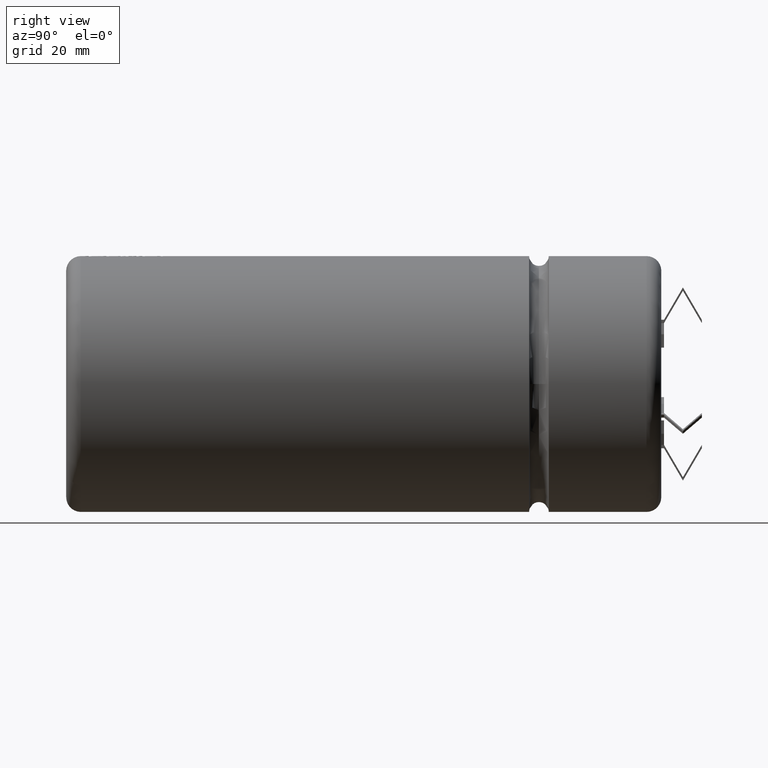
[diagram: clean part render]
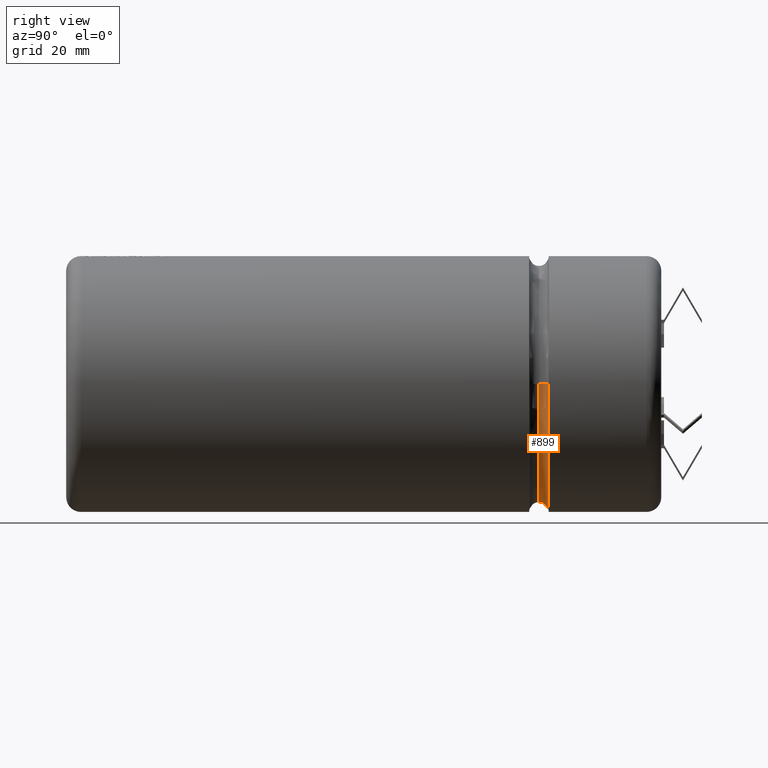
[diagram: same view with one face highlighted and labeled with its STEP entity id]
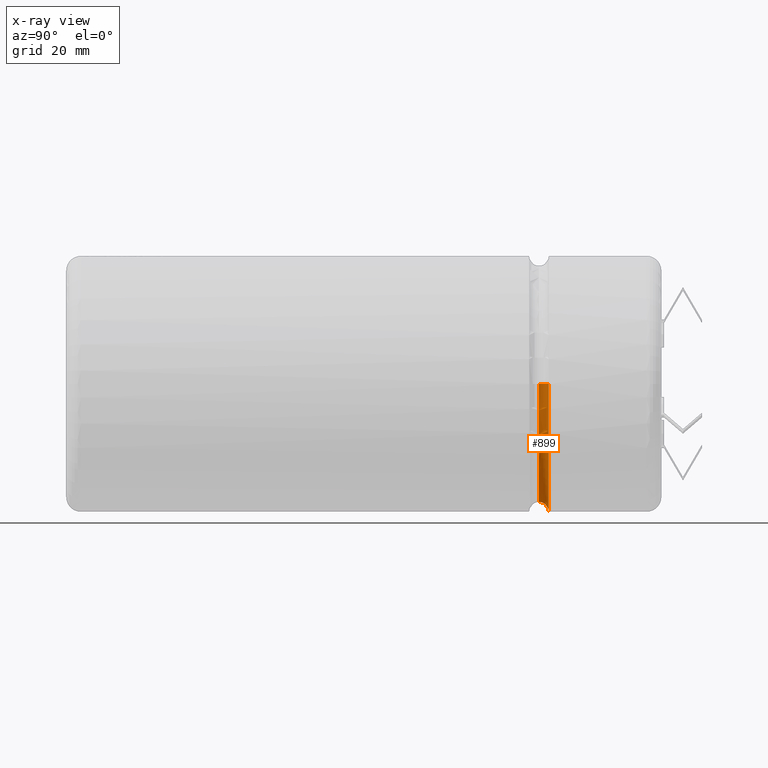
[diagram: x-ray of the same camera — body ghosted, the highlighted face saturated]
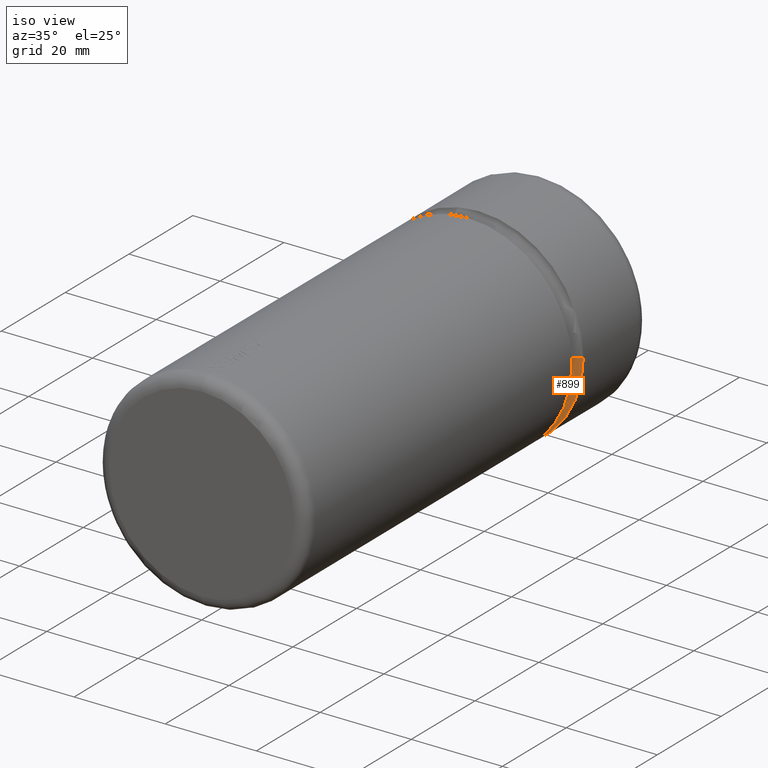
[diagram: same view with one face highlighted and labeled with its STEP entity id]
A machine part, right view. The second image highlights one B-rep face of the part: STEP entity #899.
The next image is the same camera in x-ray: the body ghosted, the highlighted face saturated — about 0% of this face is hidden behind the body in this view.
A second angle (iso view) of the same face is appended — the face is thin or edge-on in the first view.
In plain terms, the highlighted toroidal blend (fillet) surface has major radius 23 mm and minor (blend) radius 1.7692 mm.
Its self-contained STEP definition (entity closure, byte-faithful):
#20 = CIRCLE ( 'NONE', #3860, 23.00000000000000000 ) ;
#42 = VERTEX_POINT ( 'NONE', #725 ) ;
#192 = CIRCLE ( 'NONE', #2516, 21.23083999999999700 ) ;
#286 = DIRECTION ( 'NONE',  ( 1.000000000000000000, 0.0000000000000000000, 1.224646799147352200E-016 ) ) ;
#357 = CARTESIAN_POINT ( 'NONE',  ( 2.739225679850495200E-034, 84.99999999999998600, 0.0000000000000000000 ) ) ;
#458 = CARTESIAN_POINT ( 'NONE',  ( -23.00000000000000400, 84.99999999999998600, 0.0000000000000000000 ) ) ;
#555 = AXIS2_PLACEMENT_3D ( 'NONE', #458, #3009, #3365 ) ;
#602 = CIRCLE ( 'NONE', #555, 1.769160000000005600 ) ;
#720 = DIRECTION ( 'NONE',  ( -1.000000000000000000, 0.0000000000000000000, 0.0000000000000000000 ) ) ;
#725 = CARTESIAN_POINT ( 'NONE',  ( -23.00000000000000000, 86.76915999999999900, 0.0000000000000000000 ) ) ;
#726 = EDGE_CURVE ( 'NONE', #42, #2666, #602, .T. ) ;
#793 = CARTESIAN_POINT ( 'NONE',  ( -21.23083999999999700, 84.99999999999998600, 0.0000000000000000000 ) ) ;
#899 = ADVANCED_FACE ( 'NONE', ( #2255 ), #1453, .F. ) ;
#970 = DIRECTION ( 'NONE',  ( -1.264299165142146600E-018, 1.000000000000000000, -0.0000000000000000000 ) ) ;
#1005 = DIRECTION ( 'NONE',  ( -1.000000000000000000, -1.264299165142146600E-018, 0.0000000000000000000 ) ) ;
#1099 = ORIENTED_EDGE ( 'NONE', *, *, #3397, .T. ) ;
#1257 = EDGE_CURVE ( 'NONE', #1937, #2666, #192, .T. ) ;
#1453 = TOROIDAL_SURFACE ( 'NONE', #3718, 23.00000000000000400, 1.769160000000005600 ) ;
#1937 = VERTEX_POINT ( 'NONE', #4440 ) ;
#1942 = CARTESIAN_POINT ( 'NONE',  ( 0.0000000000000000000, 84.99999999999998600, 0.0000000000000000000 ) ) ;
#1943 = CARTESIAN_POINT ( 'NONE',  ( -8.735633565318470400E-017, 86.76915999999999900, 0.0000000000000000000 ) ) ;
#2054 = CARTESIAN_POINT ( 'NONE',  ( 23.00000000000000400, 84.99999999999998600, 2.816687638038912700E-015 ) ) ;
#2255 = FACE_OUTER_BOUND ( 'NONE', #2540, .T. ) ;
#2324 = DIRECTION ( 'NONE',  ( -1.264299165142146600E-018, 1.000000000000000000, -0.0000000000000000000 ) ) ;
#2516 = AXIS2_PLACEMENT_3D ( 'NONE', #357, #3662, #720 ) ;
#2540 = EDGE_LOOP ( 'NONE', ( #1099, #3632, #3694, #4685, #4345 ) ) ;
#2666 = VERTEX_POINT ( 'NONE', #793 ) ;
#2764 = AXIS2_PLACEMENT_3D ( 'NONE', #2054, #3191, #286 ) ;
#2851 = CARTESIAN_POINT ( 'NONE',  ( 0.0000000000000000000, 86.76915999999999900, -23.00000000000000000 ) ) ;
#3009 = DIRECTION ( 'NONE',  ( 0.0000000000000000000, -0.0000000000000000000, -1.000000000000000000 ) ) ;
#3054 = DIRECTION ( 'NONE',  ( -1.000000000000000000, 0.0000000000000000000, 0.0000000000000000000 ) ) ;
#3181 = CIRCLE ( 'NONE', #2764, 1.769160000000005600 ) ;
#3191 = DIRECTION ( 'NONE',  ( -1.224646799147353200E-016, -1.548319925756000800E-034, 1.000000000000000000 ) ) ;
#3309 = EDGE_CURVE ( 'NONE', #3816, #42, #20, .T. ) ;
#3355 = CARTESIAN_POINT ( 'NONE',  ( 23.00000000000000000, 86.76915999999999900, 2.816687638038913100E-015 ) ) ;
#3365 = DIRECTION ( 'NONE',  ( -1.000000000000000000, 0.0000000000000000000, 0.0000000000000000000 ) ) ;
#3397 = EDGE_CURVE ( 'NONE', #4555, #1937, #3181, .T. ) ;
#3569 = AXIS2_PLACEMENT_3D ( 'NONE', #1943, #2324, #3054 ) ;
#3632 = ORIENTED_EDGE ( 'NONE', *, *, #1257, .T. ) ;
#3662 = DIRECTION ( 'NONE',  ( -1.264299165142146600E-018, 1.000000000000000000, -0.0000000000000000000 ) ) ;
#3694 = ORIENTED_EDGE ( 'NONE', *, *, #726, .F. ) ;
#3718 = AXIS2_PLACEMENT_3D ( 'NONE', #1942, #970, #1005 ) ;
#3729 = EDGE_CURVE ( 'NONE', #4555, #3816, #4637, .T. ) ;
#3760 = DIRECTION ( 'NONE',  ( -1.000000000000000000, 0.0000000000000000000, 0.0000000000000000000 ) ) ;
#3816 = VERTEX_POINT ( 'NONE', #2851 ) ;
#3860 = AXIS2_PLACEMENT_3D ( 'NONE', #4154, #4523, #3760 ) ;
#4154 = CARTESIAN_POINT ( 'NONE',  ( -8.735633565318470400E-017, 86.76915999999999900, 0.0000000000000000000 ) ) ;
#4345 = ORIENTED_EDGE ( 'NONE', *, *, #3729, .F. ) ;
#4440 = CARTESIAN_POINT ( 'NONE',  ( 21.23083999999999700, 84.99999999999998600, 2.600028024920959000E-015 ) ) ;
#4523 = DIRECTION ( 'NONE',  ( -1.264299165142146600E-018, 1.000000000000000000, -0.0000000000000000000 ) ) ;
#4555 = VERTEX_POINT ( 'NONE', #3355 ) ;
#4637 = CIRCLE ( 'NONE', #3569, 23.00000000000000000 ) ;
#4685 = ORIENTED_EDGE ( 'NONE', *, *, #3309, .F. ) ;